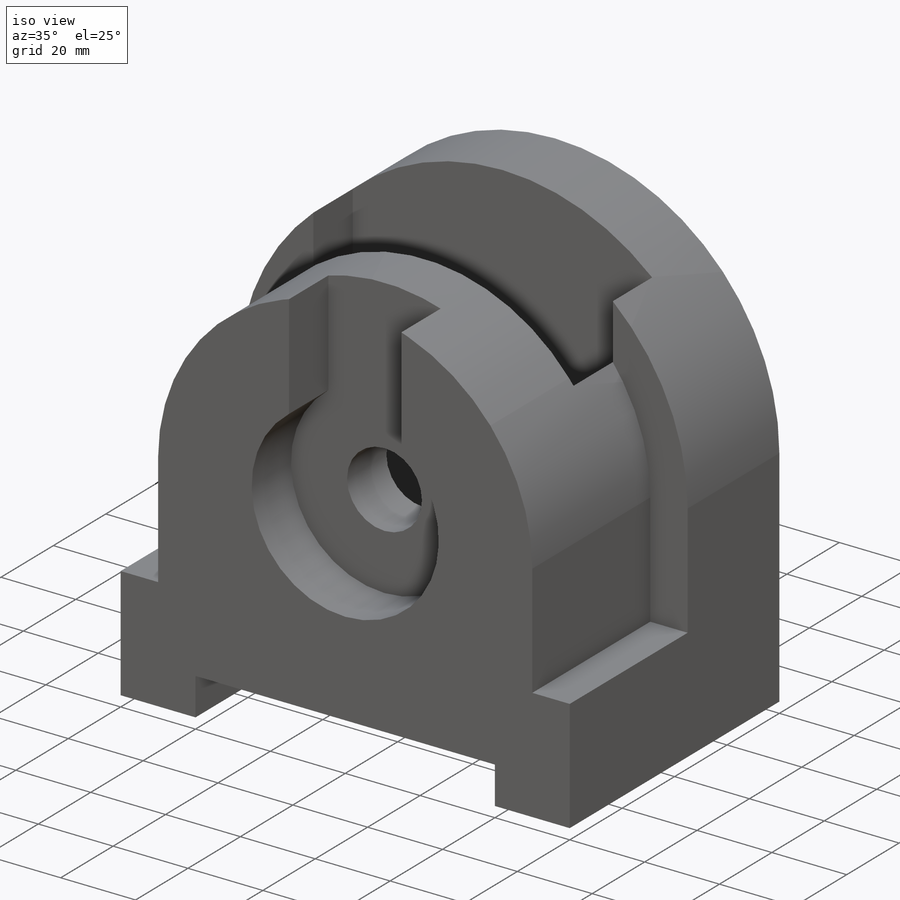
[diagram: iso view]
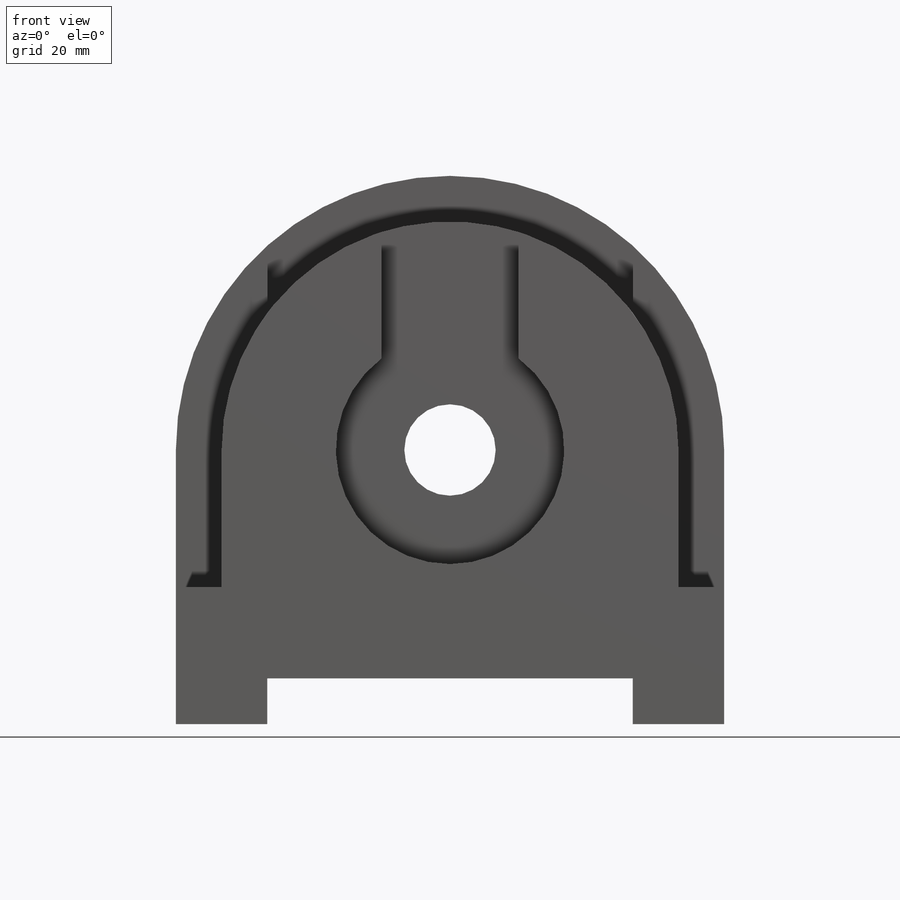
[diagram: front view]
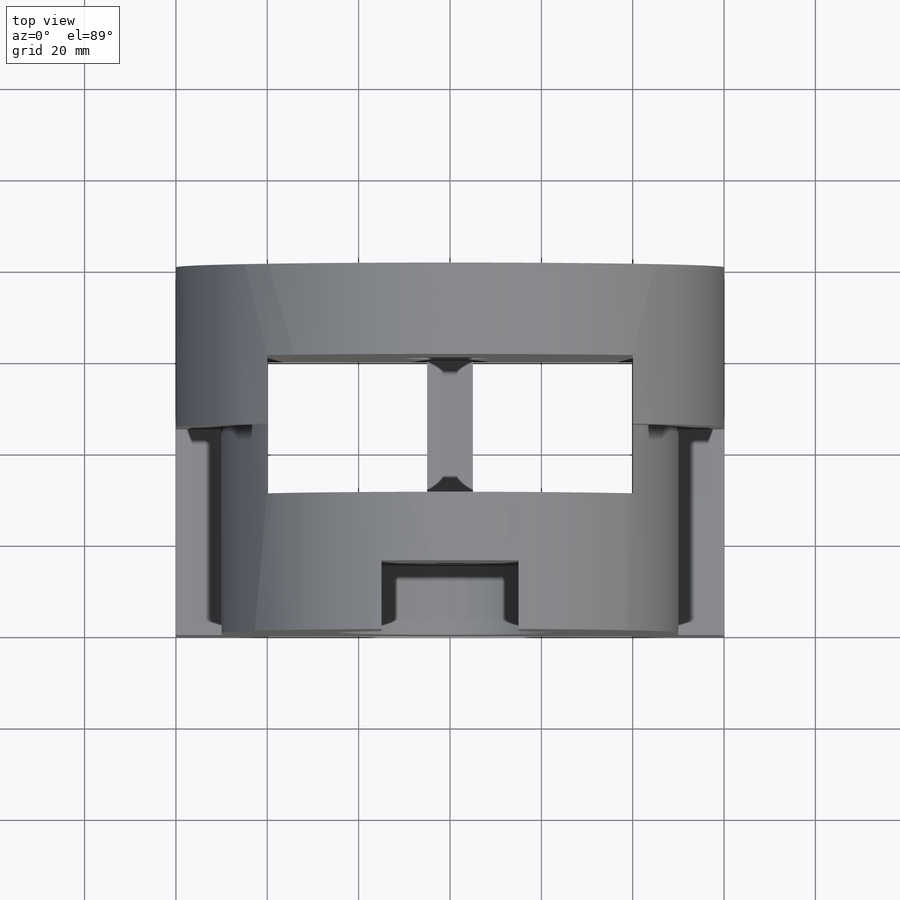
[diagram: top view]
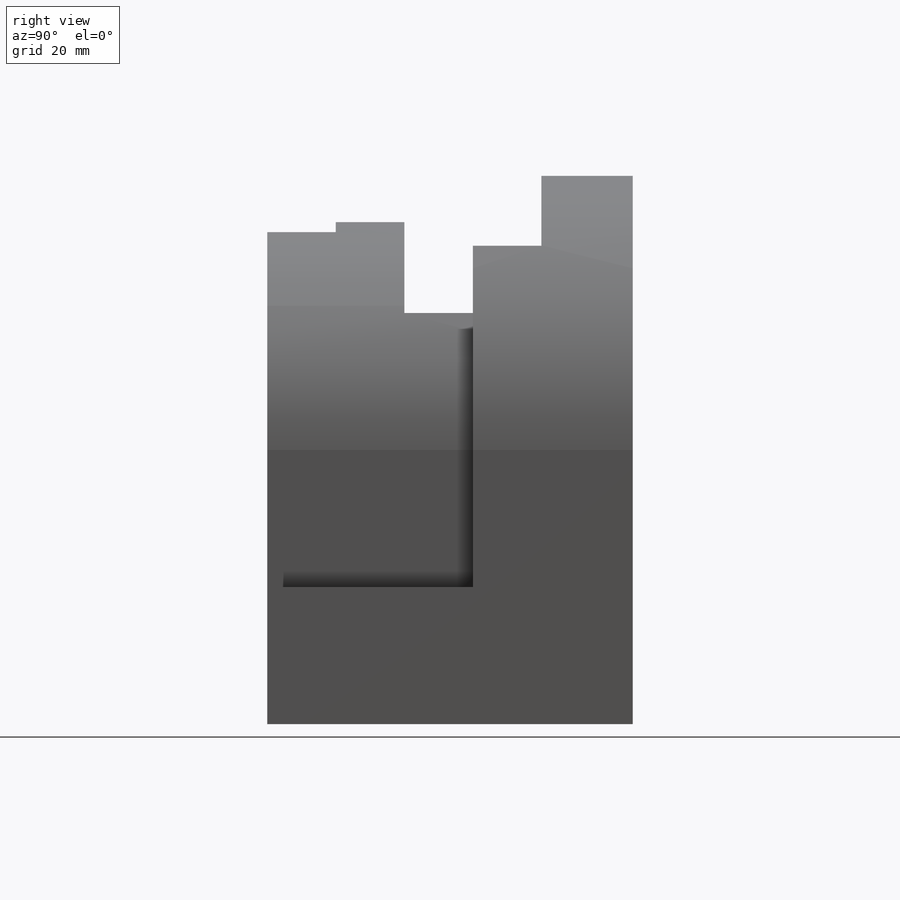
[diagram: right view]
SOLIDWORKS PART (.sldprt)
format: sldprt  version: not decoded by parser v0  size: 303,616 bytes
history: native  units: mm
features: sketch x9, cut_extrude x6, extrude x3, plane x3, material x1 (+13 scaffold rows collapsed)
feature tree (35):
  scaffold x13  (default folders/planes/origin — collapsed)
  material  "Material <not specified>"
  sketch  "Sketch1"  dims[D1=120.0mm D2=60.0mm]
  extrude  "Boss-Extrude2"  Depth=80mm
  sketch  "Sketch2"  dims[D1=10.0mm D2=20.0mm D3=20.0mm]
  cut_extrude  "Cut-Extrude1"  Depth=80mm
  sketch  "Sketch3"
  extrude  "Boss-Extrude3"  Depth=80mm
  sketch  "Sketch4"  dims[D1=20.0mm]
  cut_extrude  "Cut-Extrude2"  Depth=80mm
  sketch  "Sketch5"  dims[D1=25.0mm D4=~56.795863mm D2=15.0mm D3=15.0mm]
  cut_extrude  "Cut-Extrude3"  Depth=15mm
  sketch  "Sketch6"  dims[D2=50.0mm D1=10.0mm D3=10.0mm D4=30.0mm D5=30.0mm D6=10.0mm D7=20.0mm D8=20.0mm]
  cut_extrude  "Cut-Extrude4"  Depth=45mm
  sketch  "Sketch7"  dims[D1=60.0mm D2=10.0mm D3=60.0mm D4=10.0mm D5=60.0mm D6=60.0mm]
  cut_extrude  "Cut-Extrude5"  Depth=30mm
  plane  "Plane1"  Offset=20mm
  plane  "Plane2"
  sketch  "Sketch13"  dims[D1=30.0mm D2=20.0mm]
  cut_extrude  "Cut-Extrude12"  Depth=950mm
  plane  "Plane3"  Offset=20mm
  sketch  "Sketch14"  dims[D1=10.0mm D2=55.0mm D3=25.0mm]
  extrude  "Boss-Extrude4"  Depth=30mm
decode coverage: 17 of 18 modeling features carry decoded parameters
note: ~ marks probable driven/reference dimensions
note: suppression state not decoded; provenance and decode notes live in map.json
